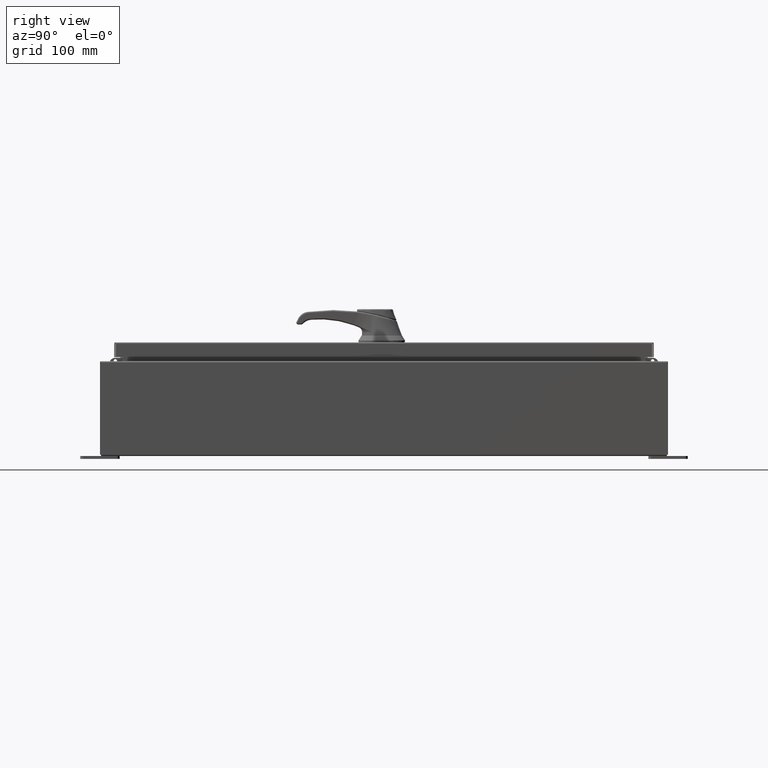
[diagram: clean part render]
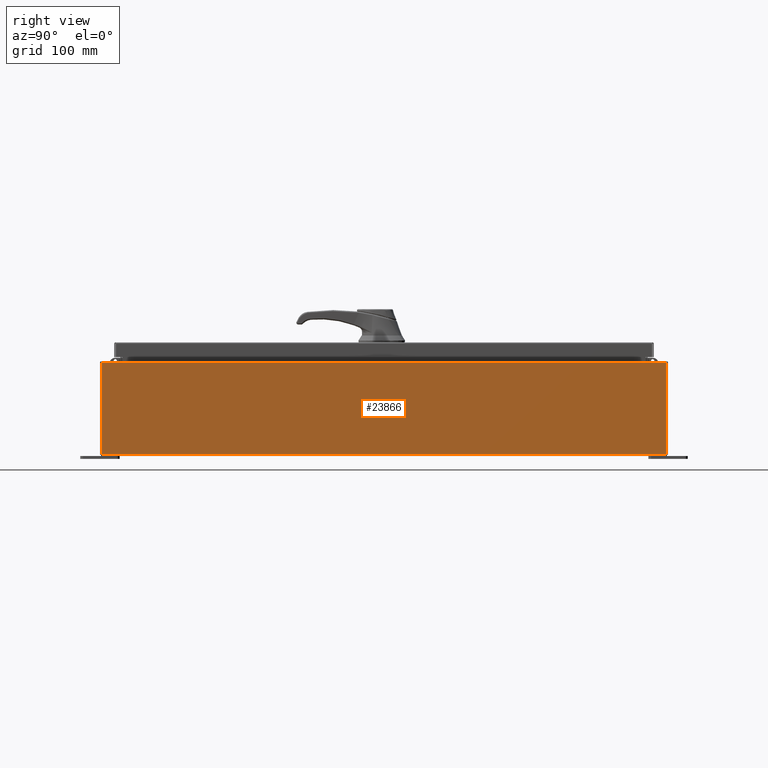
[diagram: same view with one face highlighted and labeled with its STEP entity id]
A machine part, right view. The second image highlights one B-rep face of the part: STEP entity #23866.
In plain terms, the highlighted planar face has unit normal (-1, 0, 0).
Its self-contained STEP definition (entity closure, byte-faithful):
#966 = DIRECTION ( 'NONE',  ( -0.0000000000000000000, -1.000000000000000000, -0.0000000000000000000 ) ) ;
#2236 = DIRECTION ( 'NONE',  ( 3.319545939341922800E-015, 0.0000000000000000000, 1.000000000000000000 ) ) ;
#2778 = LINE ( 'NONE', #67729, #98077 ) ;
#4707 = VECTOR ( 'NONE', #115398, 39.37007874015748100 ) ;
#5918 = DIRECTION ( 'NONE',  ( -1.000000000000000000, 0.0000000000000000000, 3.319545939341922000E-015 ) ) ;
#8636 = FACE_OUTER_BOUND ( 'NONE', #73643, .T. ) ;
#11948 = CARTESIAN_POINT ( 'NONE',  ( 12.00000000000000200, 17.92529999999999600, -4.009536492811464800E-014 ) ) ;
#19770 = ORIENTED_EDGE ( 'NONE', *, *, #56782, .T. ) ;
#20102 = ORIENTED_EDGE ( 'NONE', *, *, #66150, .T. ) ;
#23866 = ADVANCED_FACE ( 'NONE', ( #8636 ), #110211, .F. ) ;
#24826 = CARTESIAN_POINT ( 'NONE',  ( 12.00000000000000200, 0.0000000000000000000, -4.009536492811464800E-014 ) ) ;
#40628 = VECTOR ( 'NONE', #2236, 39.37007874015748100 ) ;
#47681 = CARTESIAN_POINT ( 'NONE',  ( 12.00000000000000200, 17.92529999999999600, 0.01300000000000205000 ) ) ;
#47846 = CARTESIAN_POINT ( 'NONE',  ( 12.00000000000002100, -17.92530000000000000, 5.837600000000001000 ) ) ;
#51574 = VERTEX_POINT ( 'NONE', #47681 ) ;
#52650 = VERTEX_POINT ( 'NONE', #119417 ) ;
#56782 = EDGE_CURVE ( 'NONE', #51574, #90938, #68825, .T. ) ;
#57122 = VECTOR ( 'NONE', #104853, 39.37007874015748100 ) ;
#60103 = LINE ( 'NONE', #95380, #57122 ) ;
#66150 = EDGE_CURVE ( 'NONE', #79556, #52650, #60103, .T. ) ;
#67729 = CARTESIAN_POINT ( 'NONE',  ( 12.00000000000002100, 17.92530000000000000, 5.837600000000001000 ) ) ;
#68825 = LINE ( 'NONE', #11948, #40628 ) ;
#72568 = DIRECTION ( 'NONE',  ( 3.319545939341922000E-015, 0.0000000000000000000, 1.000000000000000000 ) ) ;
#73643 = EDGE_LOOP ( 'NONE', ( #107266, #20102, #80924, #19770 ) ) ;
#74907 = CARTESIAN_POINT ( 'NONE',  ( 12.00000000000000200, -17.92530000000000400, 0.01299999999999986400 ) ) ;
#79556 = VERTEX_POINT ( 'NONE', #47846 ) ;
#80924 = ORIENTED_EDGE ( 'NONE', *, *, #91003, .F. ) ;
#90938 = VERTEX_POINT ( 'NONE', #112534 ) ;
#91003 = EDGE_CURVE ( 'NONE', #51574, #52650, #102879, .T. ) ;
#95380 = CARTESIAN_POINT ( 'NONE',  ( 12.00000000000000200, -17.92530000000000400, -4.009536492811464800E-014 ) ) ;
#98077 = VECTOR ( 'NONE', #966, 39.37007874015748100 ) ;
#102879 = LINE ( 'NONE', #74907, #4707 ) ;
#104853 = DIRECTION ( 'NONE',  ( -3.319545939341922800E-015, 0.0000000000000000000, -1.000000000000000000 ) ) ;
#107266 = ORIENTED_EDGE ( 'NONE', *, *, #114663, .T. ) ;
#109288 = AXIS2_PLACEMENT_3D ( 'NONE', #24826, #5918, #72568 ) ;
#110211 = PLANE ( 'NONE',  #109288 ) ;
#112534 = CARTESIAN_POINT ( 'NONE',  ( 12.00000000000002100, 17.92530000000000000, 5.837600000000001000 ) ) ;
#114663 = EDGE_CURVE ( 'NONE', #90938, #79556, #2778, .T. ) ;
#115398 = DIRECTION ( 'NONE',  ( -2.023619111371655800E-031, -1.000000000000000000, -6.096072018129156600E-017 ) ) ;
#119417 = CARTESIAN_POINT ( 'NONE',  ( 12.00000000000000200, -17.92530000000000400, 0.01300000000000095200 ) ) ;